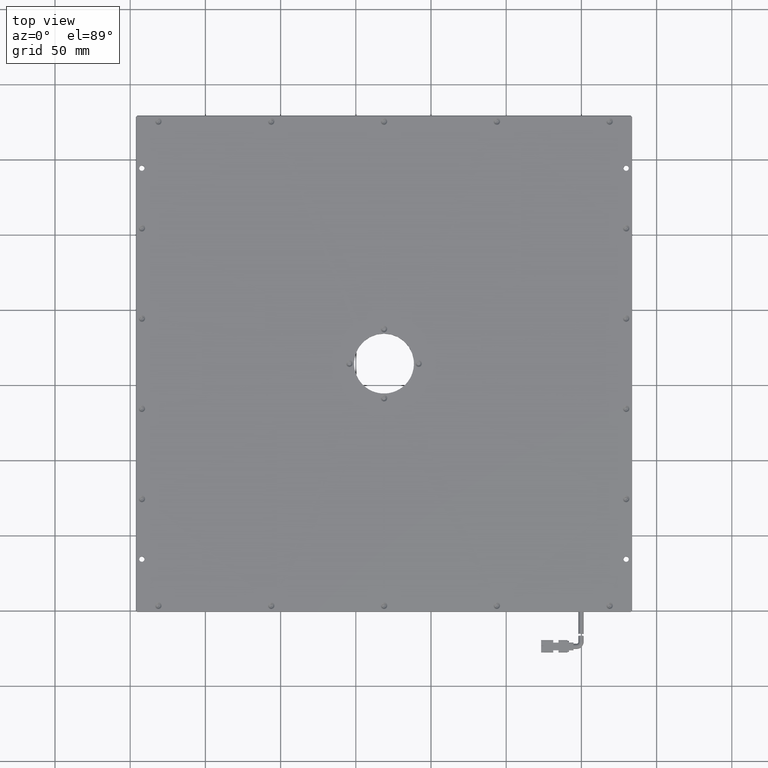
[diagram: clean part render]
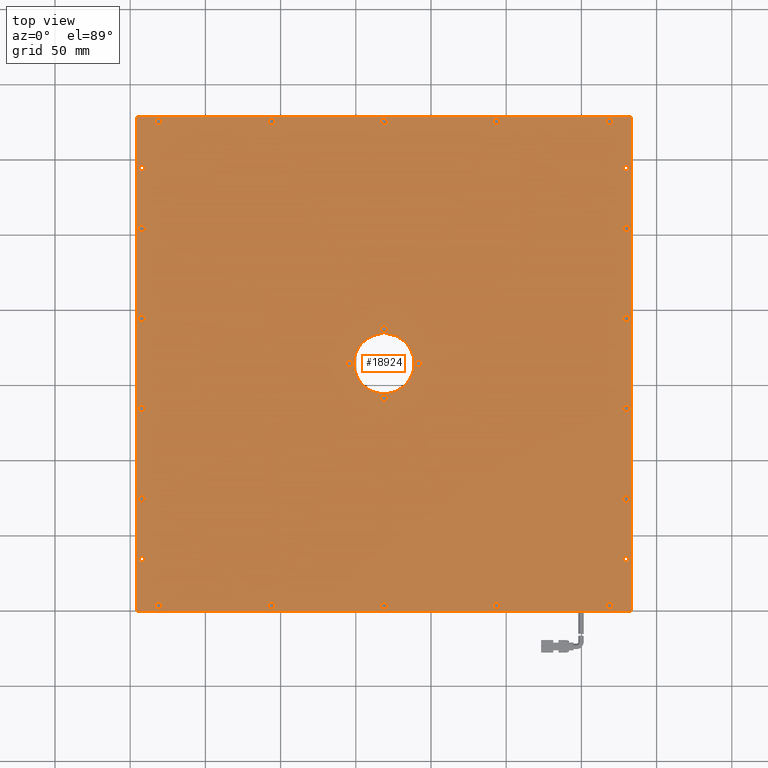
[diagram: same view with one face highlighted and labeled with its STEP entity id]
A machine part, top view. The second image highlights one B-rep face of the part: STEP entity #18924.
In plain terms, the highlighted planar face has unit normal (0, -0, 1).
Its self-contained STEP definition (entity closure, byte-faithful):
#14 = DIRECTION ( 'NONE',  ( -0.0000000000000000000, 0.0000000000000000000, -1.000000000000000000 ) ) ;
#43 = VERTEX_POINT ( 'NONE', #22948 ) ;
#145 = CARTESIAN_POINT ( 'NONE',  ( 118.7560923609355100, -96.69342595209401700, 11.00000000000500200 ) ) ;
#188 = DIRECTION ( 'NONE',  ( -0.0000000000000000000, 0.0000000000000000000, -1.000000000000000000 ) ) ;
#214 = CIRCLE ( 'NONE', #30645, 1.799999999999968300 ) ;
#257 = CIRCLE ( 'NONE', #10219, 2.200000000053936600 ) ;
#350 = ORIENTED_EDGE ( 'NONE', *, *, #26129, .T. ) ;
#375 = ORIENTED_EDGE ( 'NONE', *, *, #30784, .T. ) ;
#577 = CIRCLE ( 'NONE', #31063, 1.799999999999996000 ) ;
#612 = AXIS2_PLACEMENT_3D ( 'NONE', #924, #18905, #3515 ) ;
#772 = VERTEX_POINT ( 'NONE', #24092 ) ;
#857 = CARTESIAN_POINT ( 'NONE',  ( -192.2439076390644700, 34.30657404790599000, 11.00000000000500200 ) ) ;
#924 = CARTESIAN_POINT ( 'NONE',  ( 129.7560923609355300, -25.69342595209400700, 11.00000000011868900 ) ) ;
#1042 = CARTESIAN_POINT ( 'NONE',  ( -104.0439076390573800, 225.3065740479060500, 11.00000000000500200 ) ) ;
#1188 = EDGE_LOOP ( 'NONE', ( #11448, #27724 ) ) ;
#1323 = EDGE_CURVE ( 'NONE', #14205, #27763, #27164, .T. ) ;
#1472 = EDGE_CURVE ( 'NONE', #10096, #2498, #12330, .T. ) ;
#1527 = CARTESIAN_POINT ( 'NONE',  ( -108.4439076390715500, 225.3065740479060500, 11.00000000000500200 ) ) ;
#1575 = AXIS2_PLACEMENT_3D ( 'NONE', #1607, #3969, #21957 ) ;
#1598 = FACE_BOUND ( 'NONE', #17820, .T. ) ;
#1607 = CARTESIAN_POINT ( 'NONE',  ( -31.24390763906442800, 41.30657404790602500, 10.99999999994815900 ) ) ;
#1654 = VECTOR ( 'NONE', #19646, 1000.000000000000000 ) ;
#1763 = CARTESIAN_POINT ( 'NONE',  ( 116.5560923609625100, -96.69342595209401700, 11.00000000000500200 ) ) ;
#1832 = AXIS2_PLACEMENT_3D ( 'NONE', #23972, #13651, #10851 ) ;
#1882 = ORIENTED_EDGE ( 'NONE', *, *, #21936, .T. ) ;
#2097 = DIRECTION ( 'NONE',  ( -0.0000000000000000000, 0.0000000000000000000, -1.000000000000000000 ) ) ;
#2108 = VERTEX_POINT ( 'NONE', #25508 ) ;
#2135 = CARTESIAN_POINT ( 'NONE',  ( -56.44390763914927300, 64.30657404790603900, 10.99999999994815900 ) ) ;
#2179 = AXIS2_PLACEMENT_3D ( 'NONE', #13668, #11343, #10869 ) ;
#2388 = CIRCLE ( 'NONE', #15272, 2.200000000018465000 ) ;
#2487 = DIRECTION ( 'NONE',  ( 0.0000000000000000000, 0.0000000000000000000, -1.000000000000000000 ) ) ;
#2498 = VERTEX_POINT ( 'NONE', #15281 ) ;
#2501 = ORIENTED_EDGE ( 'NONE', *, *, #20498, .T. ) ;
#2511 = CARTESIAN_POINT ( 'NONE',  ( 129.7560923609355300, -65.69342595209401700, 11.00000000001909900 ) ) ;
#2596 = DIRECTION ( 'NONE',  ( 1.000000000000000000, 0.0000000000000000000, 0.0000000000000000000 ) ) ;
#2604 = EDGE_CURVE ( 'NONE', #21901, #27175, #4913, .T. ) ;
#2625 = DIRECTION ( 'NONE',  ( 1.000000000000000000, 0.0000000000000000000, 0.0000000000000000000 ) ) ;
#2671 = DIRECTION ( 'NONE',  ( 1.000000000000000000, 0.0000000000000000000, 0.0000000000000000000 ) ) ;
#2869 = DIRECTION ( 'NONE',  ( -0.0000000000000000000, 0.0000000000000000000, -1.000000000000000000 ) ) ;
#2899 = EDGE_CURVE ( 'NONE', #12431, #25189, #12507, .T. ) ;
#2929 = DIRECTION ( 'NONE',  ( 1.000000000000000000, 0.0000000000000000000, 0.0000000000000000000 ) ) ;
#2941 = EDGE_LOOP ( 'NONE', ( #10412, #14502, #24569, #30407 ) ) ;
#2943 = EDGE_CURVE ( 'NONE', #25761, #14394, #14509, .T. ) ;
#3053 = CIRCLE ( 'NONE', #17833, 2.199999999937529700 ) ;
#3121 = DIRECTION ( 'NONE',  ( 1.000000000000000000, 0.0000000000000000000, -0.0000000000000000000 ) ) ;
#3130 = VERTEX_POINT ( 'NONE', #1763 ) ;
#3133 = CIRCLE ( 'NONE', #22898, 2.200000000084828300 ) ;
#3186 = EDGE_CURVE ( 'NONE', #16701, #11623, #13653, .T. ) ;
#3191 = ORIENTED_EDGE ( 'NONE', *, *, #6962, .T. ) ;
#3202 = FACE_BOUND ( 'NONE', #30466, .T. ) ;
#3231 = ORIENTED_EDGE ( 'NONE', *, *, #32879, .T. ) ;
#3341 = ORIENTED_EDGE ( 'NONE', *, *, #3938, .T. ) ;
#3378 = CARTESIAN_POINT ( 'NONE',  ( 129.7560923609355300, 94.30657404790598300, 11.00000000011868900 ) ) ;
#3515 = DIRECTION ( 'NONE',  ( 1.000000000000000000, 0.0000000000000000000, 0.0000000000000000000 ) ) ;
#3580 = CARTESIAN_POINT ( 'NONE',  ( -192.2439076390644700, -65.69342595209401700, 11.00000000001909900 ) ) ;
#3605 = FACE_BOUND ( 'NONE', #27773, .T. ) ;
#3623 = ORIENTED_EDGE ( 'NONE', *, *, #1472, .T. ) ;
#3633 = CARTESIAN_POINT ( 'NONE',  ( -8.243907639064490300, 64.30657404790579800, 10.99999999994815900 ) ) ;
#3681 = DIRECTION ( 'NONE',  ( -0.0000000000000000000, 0.0000000000000000000, -1.000000000000000000 ) ) ;
#3699 = EDGE_CURVE ( 'NONE', #6359, #33117, #11189, .T. ) ;
#3872 = DIRECTION ( 'NONE',  ( 1.000000000000000000, 0.0000000000000000000, 0.0000000000000000000 ) ) ;
#3938 = EDGE_CURVE ( 'NONE', #24498, #31099, #22816, .T. ) ;
#3945 = EDGE_CURVE ( 'NONE', #2108, #12539, #29600, .T. ) ;
#3969 = DIRECTION ( 'NONE',  ( -0.0000000000000000000, 0.0000000000000000000, -1.000000000000000000 ) ) ;
#4020 = FACE_BOUND ( 'NONE', #24461, .T. ) ;
#4042 = CARTESIAN_POINT ( 'NONE',  ( 133.2560923609355300, -100.1934259520939900, 11.00000000001911900 ) ) ;
#4070 = CARTESIAN_POINT ( 'NONE',  ( 129.7560923609355300, 194.3065740479059700, 11.00000000001909900 ) ) ;
#4142 = CARTESIAN_POINT ( 'NONE',  ( 133.7560923609355300, 228.8065740479060000, 11.00000000001906200 ) ) ;
#4300 = CIRCLE ( 'NONE', #11184, 2.199999999995733400 ) ;
#4339 = EDGE_CURVE ( 'NONE', #18130, #30052, #3053, .T. ) ;
#4422 = FACE_BOUND ( 'NONE', #31839, .T. ) ;
#4472 = CARTESIAN_POINT ( 'NONE',  ( 129.7560923609355300, 154.3065740479060000, 11.00000000011868900 ) ) ;
#4481 = CIRCLE ( 'NONE', #19411, 2.199999999995733400 ) ;
#4489 = CIRCLE ( 'NONE', #12466, 2.199999999937529700 ) ;
#4507 = EDGE_CURVE ( 'NONE', #11428, #11664, #577, .T. ) ;
#4592 = AXIS2_PLACEMENT_3D ( 'NONE', #20878, #5590, #10761 ) ;
#4680 = VERTEX_POINT ( 'NONE', #17184 ) ;
#4787 = CARTESIAN_POINT ( 'NONE',  ( -29.04390763906874900, -96.69342595209404600, 11.00000000000500200 ) ) ;
#4906 = DIRECTION ( 'NONE',  ( -0.0000000000000000000, 0.0000000000000000000, -1.000000000000000000 ) ) ;
#4913 = CIRCLE ( 'NONE', #12994, 2.200000000007085200 ) ;
#4928 = AXIS2_PLACEMENT_3D ( 'NONE', #12728, #25061, #10124 ) ;
#4968 = AXIS2_PLACEMENT_3D ( 'NONE', #145, #2869, #20829 ) ;
#4972 = DIRECTION ( 'NONE',  ( -0.0000000000000000000, 0.0000000000000000000, -1.000000000000000000 ) ) ;
#5121 = CIRCLE ( 'NONE', #612, 2.200000000053936600 ) ;
#5123 = ORIENTED_EDGE ( 'NONE', *, *, #32008, .T. ) ;
#5171 = DIRECTION ( 'NONE',  ( 1.000000000000000000, 0.0000000000000000000, 0.0000000000000000000 ) ) ;
#5222 = CARTESIAN_POINT ( 'NONE',  ( 131.9560923609894600, 94.30657404790598300, 11.00000000011868900 ) ) ;
#5324 = EDGE_LOOP ( 'NONE', ( #22069, #17134 ) ) ;
#5406 = AXIS2_PLACEMENT_3D ( 'NONE', #22251, #32262, #16966 ) ;
#5409 = CARTESIAN_POINT ( 'NONE',  ( 129.7560923609355300, -25.69342595209400700, 11.00000000011868900 ) ) ;
#5446 = CIRCLE ( 'NONE', #5806, 1.799999999999996000 ) ;
#5590 = DIRECTION ( 'NONE',  ( -0.0000000000000000000, -0.0000000000000000000, -1.000000000000000000 ) ) ;
#5670 = EDGE_LOOP ( 'NONE', ( #14104, #350 ) ) ;
#5677 = CIRCLE ( 'NONE', #4592, 20.00000000000001800 ) ;
#5701 = PLANE ( 'NONE',  #25985 ) ;
#5741 = DIRECTION ( 'NONE',  ( -0.0000000000000000000, -0.0000000000000000000, -1.000000000000000000 ) ) ;
#5786 = CARTESIAN_POINT ( 'NONE',  ( 131.9560923609894600, -25.69342595209400700, 11.00000000011868900 ) ) ;
#5806 = AXIS2_PLACEMENT_3D ( 'NONE', #12645, #33204, #23427 ) ;
#5852 = AXIS2_PLACEMENT_3D ( 'NONE', #857, #3681, #19282 ) ;
#5921 = CARTESIAN_POINT ( 'NONE',  ( 133.7560923609355300, 229.3065740479060500, 11.00000000001909900 ) ) ;
#5941 = EDGE_CURVE ( 'NONE', #20846, #17275, #4481, .T. ) ;
#5970 = CARTESIAN_POINT ( 'NONE',  ( -54.24390763906444600, 64.30657404790603900, 10.99999999994815900 ) ) ;
#6046 = DIRECTION ( 'NONE',  ( -0.0000000000000000000, 0.0000000000000000000, -1.000000000000000000 ) ) ;
#6050 = DIRECTION ( 'NONE',  ( -0.0000000000000000000, -9.856383386047164300E-017, -1.000000000000000000 ) ) ;
#6162 = CIRCLE ( 'NONE', #30217, 2.199999999995733400 ) ;
#6216 = EDGE_CURVE ( 'NONE', #30052, #18130, #28069, .T. ) ;
#6250 = CARTESIAN_POINT ( 'NONE',  ( -11.24390763906443700, 64.30657404790599700, 11.00000000001909900 ) ) ;
#6294 = DIRECTION ( 'NONE',  ( 1.000000000000000000, 0.0000000000000000000, 0.0000000000000000000 ) ) ;
#6359 = VERTEX_POINT ( 'NONE', #1527 ) ;
#6389 = AXIS2_PLACEMENT_3D ( 'NONE', #31531, #19042, #28981 ) ;
#6458 = DIRECTION ( 'NONE',  ( 1.000000000000000000, 0.0000000000000000000, 0.0000000000000000000 ) ) ;
#6500 = VERTEX_POINT ( 'NONE', #9410 ) ;
#6502 = CIRCLE ( 'NONE', #18287, 2.200000000007085200 ) ;
#6664 = CIRCLE ( 'NONE', #20054, 2.200000000053936600 ) ;
#6670 = AXIS2_PLACEMENT_3D ( 'NONE', #3378, #23915, #21350 ) ;
#6697 = EDGE_CURVE ( 'NONE', #23695, #31047, #29275, .T. ) ;
#6839 = FACE_BOUND ( 'NONE', #12947, .T. ) ;
#6889 = ORIENTED_EDGE ( 'NONE', *, *, #18946, .T. ) ;
#6902 = VERTEX_POINT ( 'NONE', #11736 ) ;
#6910 = CIRCLE ( 'NONE', #13751, 2.200000000007085200 ) ;
#6929 = CARTESIAN_POINT ( 'NONE',  ( 43.75609236093549700, 223.1065740478648800, 11.00000000006184600 ) ) ;
#6944 = EDGE_CURVE ( 'NONE', #20898, #27115, #3133, .T. ) ;
#6962 = EDGE_CURVE ( 'NONE', #9445, #29300, #7552, .T. ) ;
#7273 = CARTESIAN_POINT ( 'NONE',  ( -10.44390763914163100, 64.30657404790579800, 10.99999999994815900 ) ) ;
#7406 = CARTESIAN_POINT ( 'NONE',  ( -192.2439076390644700, 154.3065740479060000, 11.00000000000500200 ) ) ;
#7552 = CIRCLE ( 'NONE', #22469, 2.200000000077140200 ) ;
#7599 = ORIENTED_EDGE ( 'NONE', *, *, #32453, .T. ) ;
#7644 = ORIENTED_EDGE ( 'NONE', *, *, #3945, .T. ) ;
#7736 = AXIS2_PLACEMENT_3D ( 'NONE', #19873, #32885, #14680 ) ;
#7742 = CARTESIAN_POINT ( 'NONE',  ( -31.24390763906448100, -96.69342595209404600, 11.00000000000500200 ) ) ;
#7759 = ORIENTED_EDGE ( 'NONE', *, *, #4507, .T. ) ;
#7792 = CIRCLE ( 'NONE', #22654, 1.799999999999968300 ) ;
#7799 = CARTESIAN_POINT ( 'NONE',  ( -194.4439076390020200, 34.30657404790599000, 11.00000000000500200 ) ) ;
#7825 = VERTEX_POINT ( 'NONE', #17246 ) ;
#8010 = ORIENTED_EDGE ( 'NONE', *, *, #18418, .T. ) ;
#8239 = DIRECTION ( 'NONE',  ( -0.0000000000000000000, 0.0000000000000000000, -1.000000000000000000 ) ) ;
#8273 = EDGE_LOOP ( 'NONE', ( #9683, #7644 ) ) ;
#8460 = EDGE_CURVE ( 'NONE', #11623, #16701, #11968, .T. ) ;
#8486 = CARTESIAN_POINT ( 'NONE',  ( 43.75609236093549700, -94.49342595205280300, 11.00000000006184600 ) ) ;
#8855 = DIRECTION ( 'NONE',  ( -0.0000000000000000000, 0.0000000000000000000, -1.000000000000000000 ) ) ;
#8884 = AXIS2_PLACEMENT_3D ( 'NONE', #28054, #14, #2625 ) ;
#8906 = DIRECTION ( 'NONE',  ( -0.0000000000000000000, 0.0000000000000000000, -1.000000000000000000 ) ) ;
#8983 = CARTESIAN_POINT ( 'NONE',  ( 43.75609236093549700, -96.69342595209403200, 11.00000000006184600 ) ) ;
#9020 = EDGE_CURVE ( 'NONE', #16387, #7825, #214, .T. ) ;
#9220 = CIRCLE ( 'NONE', #6670, 2.200000000053936600 ) ;
#9254 = FACE_BOUND ( 'NONE', #9753, .T. ) ;
#9389 = VERTEX_POINT ( 'NONE', #19154 ) ;
#9394 = VERTEX_POINT ( 'NONE', #21414 ) ;
#9410 = CARTESIAN_POINT ( 'NONE',  ( 120.9560923609085100, -96.69342595209401700, 11.00000000000500200 ) ) ;
#9445 = VERTEX_POINT ( 'NONE', #11432 ) ;
#9483 = VERTEX_POINT ( 'NONE', #6250 ) ;
#9594 = EDGE_LOOP ( 'NONE', ( #25160, #15330 ) ) ;
#9683 = ORIENTED_EDGE ( 'NONE', *, *, #22308, .T. ) ;
#9753 = EDGE_LOOP ( 'NONE', ( #18343, #17337 ) ) ;
#10024 = EDGE_LOOP ( 'NONE', ( #3191, #26451 ) ) ;
#10096 = VERTEX_POINT ( 'NONE', #5222 ) ;
#10103 = CIRCLE ( 'NONE', #12746, 2.200000000041224500 ) ;
#10124 = DIRECTION ( 'NONE',  ( 0.0000000000000000000, -1.000000000000000000, 0.0000000000000000000 ) ) ;
#10179 = EDGE_CURVE ( 'NONE', #13491, #26938, #4489, .T. ) ;
#10219 = AXIS2_PLACEMENT_3D ( 'NONE', #4472, #17279, #16939 ) ;
#10233 = DIRECTION ( 'NONE',  ( 0.0000000000000000000, 0.0000000000000000000, -1.000000000000000000 ) ) ;
#10244 = CARTESIAN_POINT ( 'NONE',  ( -31.24390763906448100, 225.3065740479060500, 11.00000000000500200 ) ) ;
#10412 = ORIENTED_EDGE ( 'NONE', *, *, #22783, .F. ) ;
#10415 = FACE_BOUND ( 'NONE', #17379, .T. ) ;
#10473 = EDGE_CURVE ( 'NONE', #22947, #22691, #13652, .T. ) ;
#10592 = VERTEX_POINT ( 'NONE', #20687 ) ;
#10638 = AXIS2_PLACEMENT_3D ( 'NONE', #2511, #20485, #22959 ) ;
#10685 = CARTESIAN_POINT ( 'NONE',  ( -31.24390763906448100, -96.69342595209404600, 11.00000000000500200 ) ) ;
#10761 = DIRECTION ( 'NONE',  ( -1.000000000000000000, 0.0000000000000000000, 0.0000000000000000000 ) ) ;
#10851 = DIRECTION ( 'NONE',  ( 1.000000000000000000, 0.0000000000000000000, 0.0000000000000000000 ) ) ;
#10858 = CIRCLE ( 'NONE', #18020, 2.199999999937529700 ) ;
#10869 = DIRECTION ( 'NONE',  ( 0.0000000000000000000, -1.000000000000000000, 0.0000000000000000000 ) ) ;
#11014 = DIRECTION ( 'NONE',  ( 1.000000000000000000, 0.0000000000000000000, 0.0000000000000000000 ) ) ;
#11035 = DIRECTION ( 'NONE',  ( 1.000000000000000000, 0.0000000000000000000, 0.0000000000000000000 ) ) ;
#11130 = CARTESIAN_POINT ( 'NONE',  ( 129.7560923609355300, -65.69342595209401700, 11.00000000001909900 ) ) ;
#11184 = AXIS2_PLACEMENT_3D ( 'NONE', #10685, #23824, #11035 ) ;
#11189 = CIRCLE ( 'NONE', #24456, 2.200000000007085200 ) ;
#11343 = DIRECTION ( 'NONE',  ( -0.0000000000000000000, -9.856383386047164300E-017, -1.000000000000000000 ) ) ;
#11428 = VERTEX_POINT ( 'NONE', #32793 ) ;
#11432 = CARTESIAN_POINT ( 'NONE',  ( -6.043907638987350100, 64.30657404790579800, 10.99999999994815900 ) ) ;
#11444 = AXIS2_PLACEMENT_3D ( 'NONE', #16581, #29435, #3872 ) ;
#11448 = ORIENTED_EDGE ( 'NONE', *, *, #18700, .T. ) ;
#11551 = ORIENTED_EDGE ( 'NONE', *, *, #2899, .T. ) ;
#11615 = VERTEX_POINT ( 'NONE', #17955 ) ;
#11623 = VERTEX_POINT ( 'NONE', #20406 ) ;
#11664 = VERTEX_POINT ( 'NONE', #15236 ) ;
#11736 = CARTESIAN_POINT ( 'NONE',  ( -33.44390763911695100, 41.30657404790602500, 10.99999999994815900 ) ) ;
#11937 = AXIS2_PLACEMENT_3D ( 'NONE', #24385, #14170, #17206 ) ;
#11954 = ORIENTED_EDGE ( 'NONE', *, *, #31705, .T. ) ;
#11968 = CIRCLE ( 'NONE', #17150, 2.200000000053936600 ) ;
#12131 = DIRECTION ( 'NONE',  ( 1.000000000000000000, 0.0000000000000000000, 0.0000000000000000000 ) ) ;
#12145 = EDGE_CURVE ( 'NONE', #11664, #11428, #13315, .T. ) ;
#12310 = ORIENTED_EDGE ( 'NONE', *, *, #23128, .T. ) ;
#12330 = CIRCLE ( 'NONE', #27925, 2.200000000053936600 ) ;
#12413 = AXIS2_PLACEMENT_3D ( 'NONE', #23500, #23051, #18221 ) ;
#12431 = VERTEX_POINT ( 'NONE', #23300 ) ;
#12466 = AXIS2_PLACEMENT_3D ( 'NONE', #13648, #28990, #31657 ) ;
#12483 = CARTESIAN_POINT ( 'NONE',  ( -106.2439076390644600, 225.3065740479060500, 11.00000000000500200 ) ) ;
#12507 = CIRCLE ( 'NONE', #14521, 2.199999999973001300 ) ;
#12539 = VERTEX_POINT ( 'NONE', #28737 ) ;
#12645 = CARTESIAN_POINT ( 'NONE',  ( 129.7560923609355300, 194.3065740479059700, 11.00000000001909900 ) ) ;
#12728 = CARTESIAN_POINT ( 'NONE',  ( 43.75609236093549700, 225.3065740479061100, 11.00000000006184600 ) ) ;
#12746 = AXIS2_PLACEMENT_3D ( 'NONE', #8983, #6050, #26903 ) ;
#12831 = CARTESIAN_POINT ( 'NONE',  ( -29.04390763901190600, 41.30657404790602500, 10.99999999994815900 ) ) ;
#12851 = VERTEX_POINT ( 'NONE', #30508 ) ;
#12896 = CARTESIAN_POINT ( 'NONE',  ( -181.2439076390644700, 225.3065740479060500, 11.00000000000500200 ) ) ;
#12947 = EDGE_LOOP ( 'NONE', ( #29033, #16922 ) ) ;
#12994 = AXIS2_PLACEMENT_3D ( 'NONE', #25897, #13364, #2929 ) ;
#13113 = EDGE_LOOP ( 'NONE', ( #25656, #19902 ) ) ;
#13315 = CIRCLE ( 'NONE', #10638, 1.799999999999996000 ) ;
#13333 = CARTESIAN_POINT ( 'NONE',  ( -194.4439076390020200, -25.69342595209400700, 11.00000000000500200 ) ) ;
#13336 = AXIS2_PLACEMENT_3D ( 'NONE', #10244, #4972, #25285 ) ;
#13358 = ORIENTED_EDGE ( 'NONE', *, *, #3186, .T. ) ;
#13364 = DIRECTION ( 'NONE',  ( -0.0000000000000000000, 0.0000000000000000000, -1.000000000000000000 ) ) ;
#13407 = ORIENTED_EDGE ( 'NONE', *, *, #9020, .T. ) ;
#13434 = CARTESIAN_POINT ( 'NONE',  ( -104.0439076390573800, -96.69342595209406000, 11.00000000000500200 ) ) ;
#13449 = DIRECTION ( 'NONE',  ( 1.000000000000000000, 0.0000000000000000000, 0.0000000000000000000 ) ) ;
#13491 = VERTEX_POINT ( 'NONE', #13333 ) ;
#13644 = FACE_BOUND ( 'NONE', #23974, .T. ) ;
#13648 = CARTESIAN_POINT ( 'NONE',  ( -192.2439076390644700, -25.69342595209400700, 11.00000000000500200 ) ) ;
#13651 = DIRECTION ( 'NONE',  ( -0.0000000000000000000, 0.0000000000000000000, -1.000000000000000000 ) ) ;
#13652 = CIRCLE ( 'NONE', #13336, 2.199999999995733400 ) ;
#13653 = CIRCLE ( 'NONE', #7736, 2.200000000053936600 ) ;
#13668 = CARTESIAN_POINT ( 'NONE',  ( 43.75609236093549700, -96.69342595209403200, 11.00000000006184600 ) ) ;
#13751 = AXIS2_PLACEMENT_3D ( 'NONE', #12483, #33043, #27568 ) ;
#13755 = VECTOR ( 'NONE', #28344, 1000.000000000000000 ) ;
#13771 = CIRCLE ( 'NONE', #11444, 2.200000000052520800 ) ;
#13789 = ORIENTED_EDGE ( 'NONE', *, *, #8460, .T. ) ;
#13829 = CARTESIAN_POINT ( 'NONE',  ( 116.5560923609625100, 225.3065740479061100, 11.00000000000500200 ) ) ;
#13859 = DIRECTION ( 'NONE',  ( -0.0000000000000000000, 0.0000000000000000000, -1.000000000000000000 ) ) ;
#13960 = EDGE_LOOP ( 'NONE', ( #3341, #30512 ) ) ;
#14104 = ORIENTED_EDGE ( 'NONE', *, *, #32814, .T. ) ;
#14170 = DIRECTION ( 'NONE',  ( -0.0000000000000000000, 0.0000000000000000000, -1.000000000000000000 ) ) ;
#14205 = VERTEX_POINT ( 'NONE', #29308 ) ;
#14368 = EDGE_CURVE ( 'NONE', #32334, #27338, #14411, .T. ) ;
#14394 = VERTEX_POINT ( 'NONE', #30195 ) ;
#14411 = CIRCLE ( 'NONE', #4928, 2.200000000041224500 ) ;
#14502 = ORIENTED_EDGE ( 'NONE', *, *, #31728, .F. ) ;
#14509 = CIRCLE ( 'NONE', #1832, 2.199999999937529700 ) ;
#14521 = AXIS2_PLACEMENT_3D ( 'NONE', #21175, #21641, #16120 ) ;
#14676 = CIRCLE ( 'NONE', #2179, 2.200000000041224500 ) ;
#14680 = DIRECTION ( 'NONE',  ( 1.000000000000000000, 0.0000000000000000000, 0.0000000000000000000 ) ) ;
#14702 = ORIENTED_EDGE ( 'NONE', *, *, #5941, .T. ) ;
#14717 = DIRECTION ( 'NONE',  ( 1.000000000000000000, 0.0000000000000000000, 0.0000000000000000000 ) ) ;
#14942 = CIRCLE ( 'NONE', #30974, 2.200000000084828300 ) ;
#15182 = EDGE_CURVE ( 'NONE', #32939, #43, #14676, .T. ) ;
#15234 = DIRECTION ( 'NONE',  ( 1.000000000000000000, 0.0000000000000000000, 0.0000000000000000000 ) ) ;
#15236 = CARTESIAN_POINT ( 'NONE',  ( 131.5560923609355100, -65.69342595209401700, 11.00000000001909900 ) ) ;
#15254 = LINE ( 'NONE', #25472, #17693 ) ;
#15256 = FACE_BOUND ( 'NONE', #9594, .T. ) ;
#15272 = AXIS2_PLACEMENT_3D ( 'NONE', #28784, #18750, #13449 ) ;
#15281 = CARTESIAN_POINT ( 'NONE',  ( 127.5560923608815800, 94.30657404790598300, 11.00000000011868900 ) ) ;
#15287 = DIRECTION ( 'NONE',  ( -1.000000000000000000, -6.123233995737446400E-017, 6.123233995736764800E-017 ) ) ;
#15330 = ORIENTED_EDGE ( 'NONE', *, *, #6944, .T. ) ;
#15352 = EDGE_CURVE ( 'NONE', #10592, #12851, #6664, .T. ) ;
#15385 = EDGE_LOOP ( 'NONE', ( #30602, #25959 ) ) ;
#15538 = VECTOR ( 'NONE', #26664, 1000.000000000000000 ) ;
#15715 = ORIENTED_EDGE ( 'NONE', *, *, #26940, .T. ) ;
#15962 = CIRCLE ( 'NONE', #23669, 1.799999999999968300 ) ;
#15981 = AXIS2_PLACEMENT_3D ( 'NONE', #18076, #188, #2671 ) ;
#16058 = FACE_BOUND ( 'NONE', #1188, .T. ) ;
#16120 = DIRECTION ( 'NONE',  ( 1.000000000000000000, 0.0000000000000000000, 0.0000000000000000000 ) ) ;
#16363 = LINE ( 'NONE', #28888, #15538 ) ;
#16387 = VERTEX_POINT ( 'NONE', #16526 ) ;
#16442 = EDGE_LOOP ( 'NONE', ( #3623, #5123 ) ) ;
#16513 = CARTESIAN_POINT ( 'NONE',  ( 129.7560923609355300, 94.30657404790598300, 11.00000000011868900 ) ) ;
#16526 = CARTESIAN_POINT ( 'NONE',  ( -190.4439076390645200, -65.69342595209401700, 11.00000000001909900 ) ) ;
#16581 = CARTESIAN_POINT ( 'NONE',  ( -31.24390763906442800, 41.30657404790602500, 10.99999999994815900 ) ) ;
#16701 = VERTEX_POINT ( 'NONE', #17425 ) ;
#16801 = AXIS2_PLACEMENT_3D ( 'NONE', #4070, #17111, #19462 ) ;
#16884 = FACE_BOUND ( 'NONE', #19306, .T. ) ;
#16917 = EDGE_LOOP ( 'NONE', ( #29699, #18724 ) ) ;
#16922 = ORIENTED_EDGE ( 'NONE', *, *, #20005, .T. ) ;
#16933 = EDGE_CURVE ( 'NONE', #24916, #26542, #16363, .T. ) ;
#16939 = DIRECTION ( 'NONE',  ( 1.000000000000000000, 0.0000000000000000000, 0.0000000000000000000 ) ) ;
#16966 = DIRECTION ( 'NONE',  ( 1.000000000000000000, 0.0000000000000000000, 0.0000000000000000000 ) ) ;
#17111 = DIRECTION ( 'NONE',  ( 0.0000000000000000000, 0.0000000000000000000, -1.000000000000000000 ) ) ;
#17134 = ORIENTED_EDGE ( 'NONE', *, *, #24142, .T. ) ;
#17150 = AXIS2_PLACEMENT_3D ( 'NONE', #17771, #33144, #22923 ) ;
#17184 = CARTESIAN_POINT ( 'NONE',  ( -195.7439076390645900, 228.8065740479060000, 11.00000000001908000 ) ) ;
#17206 = DIRECTION ( 'NONE',  ( 1.000000000000000000, 0.0000000000000000000, 0.0000000000000000000 ) ) ;
#17246 = CARTESIAN_POINT ( 'NONE',  ( -194.0439076390644600, -65.69342595209401700, 11.00000000001909900 ) ) ;
#17275 = VERTEX_POINT ( 'NONE', #4787 ) ;
#17279 = DIRECTION ( 'NONE',  ( -0.0000000000000000000, 0.0000000000000000000, -1.000000000000000000 ) ) ;
#17337 = ORIENTED_EDGE ( 'NONE', *, *, #2604, .T. ) ;
#17352 = CARTESIAN_POINT ( 'NONE',  ( 133.2560923609355500, 228.8065740479060000, 11.00000000001909400 ) ) ;
#17379 = EDGE_LOOP ( 'NONE', ( #29858, #28610 ) ) ;
#17425 = CARTESIAN_POINT ( 'NONE',  ( 131.9560923609894600, 34.30657404790599000, 11.00000000011868900 ) ) ;
#17432 = EDGE_CURVE ( 'NONE', #29300, #9445, #32684, .T. ) ;
#17498 = CARTESIAN_POINT ( 'NONE',  ( -33.44390763911705700, 87.30657404790598300, 10.99999999994815900 ) ) ;
#17693 = VECTOR ( 'NONE', #15287, 1000.000000000000000 ) ;
#17771 = CARTESIAN_POINT ( 'NONE',  ( 129.7560923609355300, 34.30657404790599000, 11.00000000011868900 ) ) ;
#17820 = EDGE_LOOP ( 'NONE', ( #22429, #30928 ) ) ;
#17833 = AXIS2_PLACEMENT_3D ( 'NONE', #18855, #8855, #23998 ) ;
#17902 = CARTESIAN_POINT ( 'NONE',  ( -192.2439076390644700, 194.3065740479059700, 11.00000000001909900 ) ) ;
#17955 = CARTESIAN_POINT ( 'NONE',  ( -51.24390763906447400, 64.30657404790599700, 11.00000000001909900 ) ) ;
#18020 = AXIS2_PLACEMENT_3D ( 'NONE', #28717, #8239, #31282 ) ;
#18065 = CIRCLE ( 'NONE', #24311, 2.200000000018465000 ) ;
#18067 = FACE_BOUND ( 'NONE', #18175, .T. ) ;
#18076 = CARTESIAN_POINT ( 'NONE',  ( 118.7560923609355100, -96.69342595209401700, 11.00000000000500200 ) ) ;
#18130 = VERTEX_POINT ( 'NONE', #30309 ) ;
#18175 = EDGE_LOOP ( 'NONE', ( #375, #20819 ) ) ;
#18221 = DIRECTION ( 'NONE',  ( 1.000000000000000000, 0.0000000000000000000, 0.0000000000000000000 ) ) ;
#18287 = AXIS2_PLACEMENT_3D ( 'NONE', #24604, #29513, #29941 ) ;
#18343 = ORIENTED_EDGE ( 'NONE', *, *, #18658, .T. ) ;
#18350 = EDGE_CURVE ( 'NONE', #9389, #19549, #27776, .T. ) ;
#18418 = EDGE_CURVE ( 'NONE', #9483, #11615, #25779, .T. ) ;
#18658 = EDGE_CURVE ( 'NONE', #27175, #21901, #6502, .T. ) ;
#18700 = EDGE_CURVE ( 'NONE', #33117, #6359, #6910, .T. ) ;
#18724 = ORIENTED_EDGE ( 'NONE', *, *, #15182, .T. ) ;
#18750 = DIRECTION ( 'NONE',  ( -0.0000000000000000000, 0.0000000000000000000, -1.000000000000000000 ) ) ;
#18855 = CARTESIAN_POINT ( 'NONE',  ( -192.2439076390644700, 34.30657404790599000, 11.00000000000500200 ) ) ;
#18882 = FACE_BOUND ( 'NONE', #5324, .T. ) ;
#18905 = DIRECTION ( 'NONE',  ( -0.0000000000000000000, 0.0000000000000000000, -1.000000000000000000 ) ) ;
#18912 = EDGE_CURVE ( 'NONE', #772, #9394, #2388, .T. ) ;
#18924 = ADVANCED_FACE ( 'NONE', ( #20108, #26058, #3605, #3202, #9254, #16058, #13644, #28866, #32074, #18067, #4020, #25666, #18882, #22120, #30472, #6839, #26458, #10415, #19689, #1598, #26894, #29695, #4422, #32858, #27275, #15256, #16884, #19293 ), #5701, .T. ) ;
#18946 = EDGE_CURVE ( 'NONE', #25189, #12431, #24084, .T. ) ;
#19042 = DIRECTION ( 'NONE',  ( -0.0000000000000000000, 0.0000000000000000000, -1.000000000000000000 ) ) ;
#19154 = CARTESIAN_POINT ( 'NONE',  ( 127.5560923608815800, -25.69342595209400700, 11.00000000011868900 ) ) ;
#19191 = EDGE_CURVE ( 'NONE', #22691, #22947, #6162, .T. ) ;
#19282 = DIRECTION ( 'NONE',  ( 1.000000000000000000, 0.0000000000000000000, 0.0000000000000000000 ) ) ;
#19293 = FACE_BOUND ( 'NONE', #10024, .T. ) ;
#19306 = EDGE_LOOP ( 'NONE', ( #28100, #33033 ) ) ;
#19411 = AXIS2_PLACEMENT_3D ( 'NONE', #7742, #25868, #20530 ) ;
#19462 = DIRECTION ( 'NONE',  ( 1.000000000000000000, 0.0000000000000000000, 0.0000000000000000000 ) ) ;
#19549 = VERTEX_POINT ( 'NONE', #5786 ) ;
#19646 = DIRECTION ( 'NONE',  ( 1.000000000000000000, 8.410780489584517900E-017, 8.410780489584517900E-017 ) ) ;
#19689 = FACE_BOUND ( 'NONE', #13113, .T. ) ;
#19710 = AXIS2_PLACEMENT_3D ( 'NONE', #12896, #30793, #23554 ) ;
#19716 = CARTESIAN_POINT ( 'NONE',  ( -106.2439076390644600, 225.3065740479060500, 11.00000000000500200 ) ) ;
#19873 = CARTESIAN_POINT ( 'NONE',  ( 129.7560923609355300, 34.30657404790599000, 11.00000000011868900 ) ) ;
#19902 = ORIENTED_EDGE ( 'NONE', *, *, #18350, .T. ) ;
#19976 = EDGE_LOOP ( 'NONE', ( #24049, #8010 ) ) ;
#20005 = EDGE_CURVE ( 'NONE', #14394, #25761, #10858, .T. ) ;
#20054 = AXIS2_PLACEMENT_3D ( 'NONE', #22441, #2097, #32774 ) ;
#20108 = FACE_BOUND ( 'NONE', #19976, .T. ) ;
#20195 = CARTESIAN_POINT ( 'NONE',  ( -192.2439076390644700, -65.69342595209401700, 11.00000000001909900 ) ) ;
#20382 = ORIENTED_EDGE ( 'NONE', *, *, #28918, .T. ) ;
#20406 = CARTESIAN_POINT ( 'NONE',  ( 127.5560923608815800, 34.30657404790599000, 11.00000000011868900 ) ) ;
#20460 = DIRECTION ( 'NONE',  ( 1.000000000000000000, 0.0000000000000000000, 0.0000000000000000000 ) ) ;
#20485 = DIRECTION ( 'NONE',  ( 0.0000000000000000000, 0.0000000000000000000, -1.000000000000000000 ) ) ;
#20498 = EDGE_CURVE ( 'NONE', #17275, #20846, #4300, .T. ) ;
#20530 = DIRECTION ( 'NONE',  ( 1.000000000000000000, 0.0000000000000000000, 0.0000000000000000000 ) ) ;
#20687 = CARTESIAN_POINT ( 'NONE',  ( 131.9560923609894600, 154.3065740479060000, 11.00000000011868900 ) ) ;
#20819 = ORIENTED_EDGE ( 'NONE', *, *, #14368, .T. ) ;
#20829 = DIRECTION ( 'NONE',  ( 1.000000000000000000, 0.0000000000000000000, 0.0000000000000000000 ) ) ;
#20846 = VERTEX_POINT ( 'NONE', #27563 ) ;
#20853 = CARTESIAN_POINT ( 'NONE',  ( -190.0439076391269600, -25.69342595209400700, 11.00000000000500200 ) ) ;
#20878 = CARTESIAN_POINT ( 'NONE',  ( -31.24390763906445700, 64.30657404790599700, 11.00000000001909900 ) ) ;
#20898 = VERTEX_POINT ( 'NONE', #2135 ) ;
#20992 = DIRECTION ( 'NONE',  ( 0.0000000000000000000, -1.000000000000000000, 0.0000000000000000000 ) ) ;
#21006 = AXIS2_PLACEMENT_3D ( 'NONE', #26215, #21213, #20992 ) ;
#21077 = CARTESIAN_POINT ( 'NONE',  ( -52.04390763897961800, 64.30657404790603900, 10.99999999994815900 ) ) ;
#21175 = CARTESIAN_POINT ( 'NONE',  ( 118.7560923609355100, 225.3065740479061100, 11.00000000000500200 ) ) ;
#21208 = DIRECTION ( 'NONE',  ( 0.0000000000000000000, -0.0000000000000000000, 1.000000000000000000 ) ) ;
#21213 = DIRECTION ( 'NONE',  ( -0.0000000000000000000, -9.856383386047164300E-017, -1.000000000000000000 ) ) ;
#21250 = DIRECTION ( 'NONE',  ( -1.000000000000000000, 0.0000000000000000000, 0.0000000000000000000 ) ) ;
#21350 = DIRECTION ( 'NONE',  ( 1.000000000000000000, 0.0000000000000000000, 0.0000000000000000000 ) ) ;
#21414 = CARTESIAN_POINT ( 'NONE',  ( -183.4439076390829400, 225.3065740479060500, 11.00000000000500200 ) ) ;
#21504 = DIRECTION ( 'NONE',  ( -0.0000000000000000000, 0.0000000000000000000, -1.000000000000000000 ) ) ;
#21530 = AXIS2_PLACEMENT_3D ( 'NONE', #24391, #21504, #29303 ) ;
#21567 = CARTESIAN_POINT ( 'NONE',  ( -29.04390763906874900, 225.3065740479060500, 11.00000000000500200 ) ) ;
#21641 = DIRECTION ( 'NONE',  ( -0.0000000000000000000, 0.0000000000000000000, -1.000000000000000000 ) ) ;
#21682 = DIRECTION ( 'NONE',  ( -0.0000000000000000000, 0.0000000000000000000, -1.000000000000000000 ) ) ;
#21901 = VERTEX_POINT ( 'NONE', #29323 ) ;
#21921 = ORIENTED_EDGE ( 'NONE', *, *, #18912, .T. ) ;
#21936 = EDGE_CURVE ( 'NONE', #31676, #6902, #13771, .T. ) ;
#21957 = DIRECTION ( 'NONE',  ( 1.000000000000000000, 0.0000000000000000000, 0.0000000000000000000 ) ) ;
#21960 = DIRECTION ( 'NONE',  ( -0.0000000000000000000, 0.0000000000000000000, -1.000000000000000000 ) ) ;
#22062 = CARTESIAN_POINT ( 'NONE',  ( -179.0439076390460100, -96.69342595209407400, 11.00000000000500200 ) ) ;
#22069 = ORIENTED_EDGE ( 'NONE', *, *, #15352, .T. ) ;
#22120 = FACE_BOUND ( 'NONE', #13960, .T. ) ;
#22251 = CARTESIAN_POINT ( 'NONE',  ( -181.2439076390644700, -96.69342595209407400, 11.00000000000500200 ) ) ;
#22308 = EDGE_CURVE ( 'NONE', #12539, #2108, #7792, .T. ) ;
#22429 = ORIENTED_EDGE ( 'NONE', *, *, #26026, .T. ) ;
#22441 = CARTESIAN_POINT ( 'NONE',  ( 129.7560923609355300, 154.3065740479060000, 11.00000000011868900 ) ) ;
#22453 = DIRECTION ( 'NONE',  ( 0.0000000000000000000, 0.0000000000000000000, -1.000000000000000000 ) ) ;
#22469 = AXIS2_PLACEMENT_3D ( 'NONE', #3633, #27064, #29642 ) ;
#22654 = AXIS2_PLACEMENT_3D ( 'NONE', #17902, #2487, #20460 ) ;
#22691 = VERTEX_POINT ( 'NONE', #25789 ) ;
#22783 = EDGE_CURVE ( 'NONE', #31887, #4680, #30575, .T. ) ;
#22804 = DIRECTION ( 'NONE',  ( -0.0000000000000000000, 0.0000000000000000000, -1.000000000000000000 ) ) ;
#22816 = CIRCLE ( 'NONE', #12413, 2.199999999937529700 ) ;
#22825 = EDGE_CURVE ( 'NONE', #11615, #9483, #5677, .T. ) ;
#22880 = EDGE_CURVE ( 'NONE', #43, #32939, #10103, .T. ) ;
#22898 = AXIS2_PLACEMENT_3D ( 'NONE', #29423, #13859, #6458 ) ;
#22923 = DIRECTION ( 'NONE',  ( 1.000000000000000000, 0.0000000000000000000, 0.0000000000000000000 ) ) ;
#22947 = VERTEX_POINT ( 'NONE', #21567 ) ;
#22948 = CARTESIAN_POINT ( 'NONE',  ( 43.75609236093549700, -98.89342595213524600, 11.00000000006184600 ) ) ;
#22959 = DIRECTION ( 'NONE',  ( 1.000000000000000000, 0.0000000000000000000, 0.0000000000000000000 ) ) ;
#23051 = DIRECTION ( 'NONE',  ( -0.0000000000000000000, 0.0000000000000000000, -1.000000000000000000 ) ) ;
#23128 = EDGE_CURVE ( 'NONE', #6902, #31676, #30896, .T. ) ;
#23246 = CARTESIAN_POINT ( 'NONE',  ( -195.7439076390643900, 229.3065740479060500, 11.00000000001909900 ) ) ;
#23300 = CARTESIAN_POINT ( 'NONE',  ( 120.9560923609085100, 225.3065740479061100, 11.00000000000500200 ) ) ;
#23425 = CARTESIAN_POINT ( 'NONE',  ( -190.0439076391269600, 154.3065740479060000, 11.00000000000500200 ) ) ;
#23427 = DIRECTION ( 'NONE',  ( 1.000000000000000000, 0.0000000000000000000, 0.0000000000000000000 ) ) ;
#23500 = CARTESIAN_POINT ( 'NONE',  ( -192.2439076390644700, 154.3065740479060000, 11.00000000000500200 ) ) ;
#23554 = DIRECTION ( 'NONE',  ( 1.000000000000000000, 0.0000000000000000000, 0.0000000000000000000 ) ) ;
#23669 = AXIS2_PLACEMENT_3D ( 'NONE', #3580, #23999, #26895 ) ;
#23695 = VERTEX_POINT ( 'NONE', #32382 ) ;
#23824 = DIRECTION ( 'NONE',  ( -0.0000000000000000000, 0.0000000000000000000, -1.000000000000000000 ) ) ;
#23915 = DIRECTION ( 'NONE',  ( -0.0000000000000000000, 0.0000000000000000000, -1.000000000000000000 ) ) ;
#23972 = CARTESIAN_POINT ( 'NONE',  ( -192.2439076390644700, 94.30657404790598300, 11.00000000000500200 ) ) ;
#23974 = EDGE_LOOP ( 'NONE', ( #2501, #14702 ) ) ;
#23985 = VERTEX_POINT ( 'NONE', #31461 ) ;
#23998 = DIRECTION ( 'NONE',  ( 1.000000000000000000, 0.0000000000000000000, 0.0000000000000000000 ) ) ;
#23999 = DIRECTION ( 'NONE',  ( 0.0000000000000000000, 0.0000000000000000000, -1.000000000000000000 ) ) ;
#24049 = ORIENTED_EDGE ( 'NONE', *, *, #22825, .T. ) ;
#24071 = AXIS2_PLACEMENT_3D ( 'NONE', #28711, #5741, #21250 ) ;
#24084 = CIRCLE ( 'NONE', #24324, 2.199999999973001300 ) ;
#24092 = CARTESIAN_POINT ( 'NONE',  ( -179.0439076390460100, 225.3065740479060500, 11.00000000000500200 ) ) ;
#24142 = EDGE_CURVE ( 'NONE', #12851, #10592, #257, .T. ) ;
#24155 = AXIS2_PLACEMENT_3D ( 'NONE', #7406, #22804, #14717 ) ;
#24311 = AXIS2_PLACEMENT_3D ( 'NONE', #25577, #27812, #2596 ) ;
#24324 = AXIS2_PLACEMENT_3D ( 'NONE', #26317, #6046, #26439 ) ;
#24385 = CARTESIAN_POINT ( 'NONE',  ( -31.24390763906448100, 87.30657404790598300, 10.99999999994815900 ) ) ;
#24391 = CARTESIAN_POINT ( 'NONE',  ( -192.2439076390644700, -25.69342595209400700, 11.00000000000500200 ) ) ;
#24456 = AXIS2_PLACEMENT_3D ( 'NONE', #19716, #21960, #27496 ) ;
#24461 = EDGE_LOOP ( 'NONE', ( #20382, #3231 ) ) ;
#24498 = VERTEX_POINT ( 'NONE', #23425 ) ;
#24569 = ORIENTED_EDGE ( 'NONE', *, *, #16933, .F. ) ;
#24589 = CIRCLE ( 'NONE', #24155, 2.199999999937529700 ) ;
#24604 = CARTESIAN_POINT ( 'NONE',  ( -106.2439076390644600, -96.69342595209406000, 11.00000000000500200 ) ) ;
#24916 = VERTEX_POINT ( 'NONE', #17352 ) ;
#24985 = ORIENTED_EDGE ( 'NONE', *, *, #12145, .T. ) ;
#25061 = DIRECTION ( 'NONE',  ( -0.0000000000000000000, -9.856383386047164300E-017, -1.000000000000000000 ) ) ;
#25160 = ORIENTED_EDGE ( 'NONE', *, *, #28523, .T. ) ;
#25189 = VERTEX_POINT ( 'NONE', #13829 ) ;
#25285 = DIRECTION ( 'NONE',  ( 1.000000000000000000, 0.0000000000000000000, 0.0000000000000000000 ) ) ;
#25399 = CIRCLE ( 'NONE', #11937, 2.200000000052576800 ) ;
#25466 = VERTEX_POINT ( 'NONE', #32500 ) ;
#25472 = CARTESIAN_POINT ( 'NONE',  ( 133.7560923609355500, -100.1934259520939900, 11.00000000001913100 ) ) ;
#25508 = CARTESIAN_POINT ( 'NONE',  ( -194.0439076390644600, 194.3065740479059700, 11.00000000001909900 ) ) ;
#25512 = CARTESIAN_POINT ( 'NONE',  ( -194.4439076390020200, 154.3065740479060000, 11.00000000000500200 ) ) ;
#25577 = CARTESIAN_POINT ( 'NONE',  ( -181.2439076390644700, -96.69342595209407400, 11.00000000000500200 ) ) ;
#25656 = ORIENTED_EDGE ( 'NONE', *, *, #26069, .T. ) ;
#25666 = FACE_BOUND ( 'NONE', #26800, .T. ) ;
#25761 = VERTEX_POINT ( 'NONE', #30422 ) ;
#25779 = CIRCLE ( 'NONE', #24071, 20.00000000000001800 ) ;
#25789 = CARTESIAN_POINT ( 'NONE',  ( -33.44390763906021400, 225.3065740479060500, 11.00000000000500200 ) ) ;
#25868 = DIRECTION ( 'NONE',  ( -0.0000000000000000000, 0.0000000000000000000, -1.000000000000000000 ) ) ;
#25884 = CIRCLE ( 'NONE', #21006, 2.200000000041224500 ) ;
#25897 = CARTESIAN_POINT ( 'NONE',  ( -106.2439076390644600, -96.69342595209406000, 11.00000000000500200 ) ) ;
#25959 = ORIENTED_EDGE ( 'NONE', *, *, #19191, .T. ) ;
#25985 = AXIS2_PLACEMENT_3D ( 'NONE', #5921, #21208, #3121 ) ;
#26026 = EDGE_CURVE ( 'NONE', #26938, #13491, #26382, .T. ) ;
#26028 = DIRECTION ( 'NONE',  ( -0.0000000000000000000, 0.0000000000000000000, -1.000000000000000000 ) ) ;
#26058 = FACE_OUTER_BOUND ( 'NONE', #2941, .T. ) ;
#26069 = EDGE_CURVE ( 'NONE', #19549, #9389, #5121, .T. ) ;
#26111 = AXIS2_PLACEMENT_3D ( 'NONE', #28145, #10233, #5171 ) ;
#26129 = EDGE_CURVE ( 'NONE', #25466, #23985, #31976, .T. ) ;
#26215 = CARTESIAN_POINT ( 'NONE',  ( 43.75609236093549700, 225.3065740479061100, 11.00000000006184600 ) ) ;
#26317 = CARTESIAN_POINT ( 'NONE',  ( 118.7560923609355100, 225.3065740479061100, 11.00000000000500200 ) ) ;
#26382 = CIRCLE ( 'NONE', #21530, 2.199999999937529700 ) ;
#26439 = DIRECTION ( 'NONE',  ( 1.000000000000000000, 0.0000000000000000000, 0.0000000000000000000 ) ) ;
#26451 = ORIENTED_EDGE ( 'NONE', *, *, #17432, .T. ) ;
#26458 = FACE_BOUND ( 'NONE', #30960, .T. ) ;
#26542 = VERTEX_POINT ( 'NONE', #4042 ) ;
#26664 = DIRECTION ( 'NONE',  ( 0.0000000000000000000, -1.000000000000000000, -0.0000000000000000000 ) ) ;
#26800 = EDGE_LOOP ( 'NONE', ( #11551, #6889 ) ) ;
#26894 = FACE_BOUND ( 'NONE', #5670, .T. ) ;
#26895 = DIRECTION ( 'NONE',  ( 1.000000000000000000, 0.0000000000000000000, 0.0000000000000000000 ) ) ;
#26903 = DIRECTION ( 'NONE',  ( 0.0000000000000000000, -1.000000000000000000, 0.0000000000000000000 ) ) ;
#26938 = VERTEX_POINT ( 'NONE', #20853 ) ;
#26940 = EDGE_CURVE ( 'NONE', #9394, #772, #30664, .T. ) ;
#26947 = LINE ( 'NONE', #4142, #1654 ) ;
#27064 = DIRECTION ( 'NONE',  ( -0.0000000000000000000, 0.0000000000000000000, -1.000000000000000000 ) ) ;
#27115 = VERTEX_POINT ( 'NONE', #21077 ) ;
#27164 = CIRCLE ( 'NONE', #5406, 2.200000000018465000 ) ;
#27175 = VERTEX_POINT ( 'NONE', #13434 ) ;
#27275 = FACE_BOUND ( 'NONE', #30783, .T. ) ;
#27338 = VERTEX_POINT ( 'NONE', #6929 ) ;
#27496 = DIRECTION ( 'NONE',  ( 1.000000000000000000, 0.0000000000000000000, 0.0000000000000000000 ) ) ;
#27563 = CARTESIAN_POINT ( 'NONE',  ( -33.44390763906021400, -96.69342595209404600, 11.00000000000500200 ) ) ;
#27568 = DIRECTION ( 'NONE',  ( 1.000000000000000000, 0.0000000000000000000, 0.0000000000000000000 ) ) ;
#27724 = ORIENTED_EDGE ( 'NONE', *, *, #3699, .T. ) ;
#27763 = VERTEX_POINT ( 'NONE', #22062 ) ;
#27773 = EDGE_LOOP ( 'NONE', ( #11954, #29739 ) ) ;
#27776 = CIRCLE ( 'NONE', #29843, 2.200000000053936600 ) ;
#27812 = DIRECTION ( 'NONE',  ( -0.0000000000000000000, 0.0000000000000000000, -1.000000000000000000 ) ) ;
#27925 = AXIS2_PLACEMENT_3D ( 'NONE', #16513, #21682, #6294 ) ;
#28054 = CARTESIAN_POINT ( 'NONE',  ( -31.24390763906448100, 87.30657404790598300, 10.99999999994815900 ) ) ;
#28069 = CIRCLE ( 'NONE', #5852, 2.199999999937529700 ) ;
#28100 = ORIENTED_EDGE ( 'NONE', *, *, #6697, .T. ) ;
#28145 = CARTESIAN_POINT ( 'NONE',  ( -192.2439076390644700, 194.3065740479059700, 11.00000000001909900 ) ) ;
#28344 = DIRECTION ( 'NONE',  ( -0.0000000000000000000, 1.000000000000000000, 0.0000000000000000000 ) ) ;
#28523 = EDGE_CURVE ( 'NONE', #27115, #20898, #14942, .T. ) ;
#28610 = ORIENTED_EDGE ( 'NONE', *, *, #6216, .T. ) ;
#28616 = EDGE_CURVE ( 'NONE', #31047, #23695, #25399, .T. ) ;
#28711 = CARTESIAN_POINT ( 'NONE',  ( -31.24390763906445700, 64.30657404790599700, 11.00000000001909900 ) ) ;
#28717 = CARTESIAN_POINT ( 'NONE',  ( -192.2439076390644700, 94.30657404790598300, 11.00000000000500200 ) ) ;
#28726 = EDGE_CURVE ( 'NONE', #31099, #24498, #24589, .T. ) ;
#28737 = CARTESIAN_POINT ( 'NONE',  ( -190.4439076390645200, 194.3065740479059700, 11.00000000001909900 ) ) ;
#28784 = CARTESIAN_POINT ( 'NONE',  ( -181.2439076390644700, 225.3065740479060500, 11.00000000000500200 ) ) ;
#28866 = FACE_BOUND ( 'NONE', #15385, .T. ) ;
#28888 = CARTESIAN_POINT ( 'NONE',  ( 133.2560923609355800, 229.3065740479060500, 11.00000000001909900 ) ) ;
#28918 = EDGE_CURVE ( 'NONE', #6500, #3130, #30181, .T. ) ;
#28981 = DIRECTION ( 'NONE',  ( 1.000000000000000000, 0.0000000000000000000, 0.0000000000000000000 ) ) ;
#28990 = DIRECTION ( 'NONE',  ( -0.0000000000000000000, 0.0000000000000000000, -1.000000000000000000 ) ) ;
#29033 = ORIENTED_EDGE ( 'NONE', *, *, #2943, .T. ) ;
#29275 = CIRCLE ( 'NONE', #8884, 2.200000000052576800 ) ;
#29295 = DIRECTION ( 'NONE',  ( 1.000000000000000000, 0.0000000000000000000, 0.0000000000000000000 ) ) ;
#29300 = VERTEX_POINT ( 'NONE', #7273 ) ;
#29303 = DIRECTION ( 'NONE',  ( 1.000000000000000000, 0.0000000000000000000, 0.0000000000000000000 ) ) ;
#29308 = CARTESIAN_POINT ( 'NONE',  ( -183.4439076390829400, -96.69342595209407400, 11.00000000000500200 ) ) ;
#29323 = CARTESIAN_POINT ( 'NONE',  ( -108.4439076390715500, -96.69342595209406000, 11.00000000000500200 ) ) ;
#29411 = EDGE_LOOP ( 'NONE', ( #24985, #7759 ) ) ;
#29423 = CARTESIAN_POINT ( 'NONE',  ( -54.24390763906444600, 64.30657404790603900, 10.99999999994815900 ) ) ;
#29435 = DIRECTION ( 'NONE',  ( -0.0000000000000000000, 0.0000000000000000000, -1.000000000000000000 ) ) ;
#29513 = DIRECTION ( 'NONE',  ( -0.0000000000000000000, 0.0000000000000000000, -1.000000000000000000 ) ) ;
#29600 = CIRCLE ( 'NONE', #26111, 1.799999999999968300 ) ;
#29642 = DIRECTION ( 'NONE',  ( 1.000000000000000000, 0.0000000000000000000, 0.0000000000000000000 ) ) ;
#29695 = FACE_BOUND ( 'NONE', #29411, .T. ) ;
#29699 = ORIENTED_EDGE ( 'NONE', *, *, #22880, .T. ) ;
#29700 = CARTESIAN_POINT ( 'NONE',  ( -31.24390763906448100, 225.3065740479060500, 11.00000000000500200 ) ) ;
#29739 = ORIENTED_EDGE ( 'NONE', *, *, #1323, .T. ) ;
#29843 = AXIS2_PLACEMENT_3D ( 'NONE', #5409, #26028, #31392 ) ;
#29858 = ORIENTED_EDGE ( 'NONE', *, *, #4339, .T. ) ;
#29941 = DIRECTION ( 'NONE',  ( 1.000000000000000000, 0.0000000000000000000, 0.0000000000000000000 ) ) ;
#30052 = VERTEX_POINT ( 'NONE', #7799 ) ;
#30181 = CIRCLE ( 'NONE', #15981, 2.199999999973001300 ) ;
#30195 = CARTESIAN_POINT ( 'NONE',  ( -194.4439076390020200, 94.30657404790598300, 11.00000000000500200 ) ) ;
#30217 = AXIS2_PLACEMENT_3D ( 'NONE', #29700, #4906, #15234 ) ;
#30309 = CARTESIAN_POINT ( 'NONE',  ( -190.0439076391269600, 34.30657404790599000, 11.00000000000500200 ) ) ;
#30407 = ORIENTED_EDGE ( 'NONE', *, *, #30931, .F. ) ;
#30422 = CARTESIAN_POINT ( 'NONE',  ( -190.0439076391269600, 94.30657404790598300, 11.00000000000500200 ) ) ;
#30466 = EDGE_LOOP ( 'NONE', ( #21921, #15715 ) ) ;
#30472 = FACE_BOUND ( 'NONE', #16442, .T. ) ;
#30508 = CARTESIAN_POINT ( 'NONE',  ( 127.5560923608815800, 154.3065740479060000, 11.00000000011868900 ) ) ;
#30512 = ORIENTED_EDGE ( 'NONE', *, *, #28726, .T. ) ;
#30575 = LINE ( 'NONE', #23246, #13755 ) ;
#30602 = ORIENTED_EDGE ( 'NONE', *, *, #10473, .T. ) ;
#30645 = AXIS2_PLACEMENT_3D ( 'NONE', #20195, #22453, #12131 ) ;
#30664 = CIRCLE ( 'NONE', #19710, 2.200000000018465000 ) ;
#30783 = EDGE_LOOP ( 'NONE', ( #1882, #12310 ) ) ;
#30784 = EDGE_CURVE ( 'NONE', #27338, #32334, #25884, .T. ) ;
#30793 = DIRECTION ( 'NONE',  ( -0.0000000000000000000, 0.0000000000000000000, -1.000000000000000000 ) ) ;
#30896 = CIRCLE ( 'NONE', #1575, 2.200000000052520800 ) ;
#30928 = ORIENTED_EDGE ( 'NONE', *, *, #10179, .T. ) ;
#30931 = EDGE_CURVE ( 'NONE', #4680, #24916, #26947, .T. ) ;
#30960 = EDGE_LOOP ( 'NONE', ( #13358, #13789 ) ) ;
#30974 = AXIS2_PLACEMENT_3D ( 'NONE', #5970, #8906, #29295 ) ;
#31047 = VERTEX_POINT ( 'NONE', #17498 ) ;
#31063 = AXIS2_PLACEMENT_3D ( 'NONE', #11130, #31250, #11014 ) ;
#31099 = VERTEX_POINT ( 'NONE', #25512 ) ;
#31250 = DIRECTION ( 'NONE',  ( 0.0000000000000000000, 0.0000000000000000000, -1.000000000000000000 ) ) ;
#31282 = DIRECTION ( 'NONE',  ( 1.000000000000000000, 0.0000000000000000000, 0.0000000000000000000 ) ) ;
#31377 = CARTESIAN_POINT ( 'NONE',  ( -195.7439076390643900, -100.1934259520941200, 11.00000000001911400 ) ) ;
#31392 = DIRECTION ( 'NONE',  ( 1.000000000000000000, 0.0000000000000000000, 0.0000000000000000000 ) ) ;
#31461 = CARTESIAN_POINT ( 'NONE',  ( 131.5560923609355100, 194.3065740479059700, 11.00000000001909900 ) ) ;
#31531 = CARTESIAN_POINT ( 'NONE',  ( -8.243907639064490300, 64.30657404790579800, 10.99999999994815900 ) ) ;
#31657 = DIRECTION ( 'NONE',  ( 1.000000000000000000, 0.0000000000000000000, 0.0000000000000000000 ) ) ;
#31676 = VERTEX_POINT ( 'NONE', #12831 ) ;
#31705 = EDGE_CURVE ( 'NONE', #27763, #14205, #18065, .T. ) ;
#31728 = EDGE_CURVE ( 'NONE', #26542, #31887, #15254, .T. ) ;
#31839 = EDGE_LOOP ( 'NONE', ( #13407, #7599 ) ) ;
#31887 = VERTEX_POINT ( 'NONE', #31377 ) ;
#31976 = CIRCLE ( 'NONE', #16801, 1.799999999999996000 ) ;
#32008 = EDGE_CURVE ( 'NONE', #2498, #10096, #9220, .T. ) ;
#32074 = FACE_BOUND ( 'NONE', #16917, .T. ) ;
#32262 = DIRECTION ( 'NONE',  ( -0.0000000000000000000, 0.0000000000000000000, -1.000000000000000000 ) ) ;
#32334 = VERTEX_POINT ( 'NONE', #33025 ) ;
#32382 = CARTESIAN_POINT ( 'NONE',  ( -29.04390763901190600, 87.30657404790598300, 10.99999999994815900 ) ) ;
#32453 = EDGE_CURVE ( 'NONE', #7825, #16387, #15962, .T. ) ;
#32500 = CARTESIAN_POINT ( 'NONE',  ( 127.9560923609355300, 194.3065740479059700, 11.00000000001909900 ) ) ;
#32684 = CIRCLE ( 'NONE', #6389, 2.200000000077140200 ) ;
#32774 = DIRECTION ( 'NONE',  ( 1.000000000000000000, 0.0000000000000000000, 0.0000000000000000000 ) ) ;
#32793 = CARTESIAN_POINT ( 'NONE',  ( 127.9560923609355300, -65.69342595209401700, 11.00000000001909900 ) ) ;
#32814 = EDGE_CURVE ( 'NONE', #23985, #25466, #5446, .T. ) ;
#32858 = FACE_BOUND ( 'NONE', #8273, .T. ) ;
#32879 = EDGE_CURVE ( 'NONE', #3130, #6500, #33088, .T. ) ;
#32885 = DIRECTION ( 'NONE',  ( -0.0000000000000000000, 0.0000000000000000000, -1.000000000000000000 ) ) ;
#32939 = VERTEX_POINT ( 'NONE', #8486 ) ;
#33025 = CARTESIAN_POINT ( 'NONE',  ( 43.75609236093549700, 227.5065740479473400, 11.00000000006184600 ) ) ;
#33033 = ORIENTED_EDGE ( 'NONE', *, *, #28616, .T. ) ;
#33043 = DIRECTION ( 'NONE',  ( -0.0000000000000000000, 0.0000000000000000000, -1.000000000000000000 ) ) ;
#33088 = CIRCLE ( 'NONE', #4968, 2.199999999973001300 ) ;
#33117 = VERTEX_POINT ( 'NONE', #1042 ) ;
#33144 = DIRECTION ( 'NONE',  ( -0.0000000000000000000, 0.0000000000000000000, -1.000000000000000000 ) ) ;
#33204 = DIRECTION ( 'NONE',  ( 0.0000000000000000000, 0.0000000000000000000, -1.000000000000000000 ) ) ;